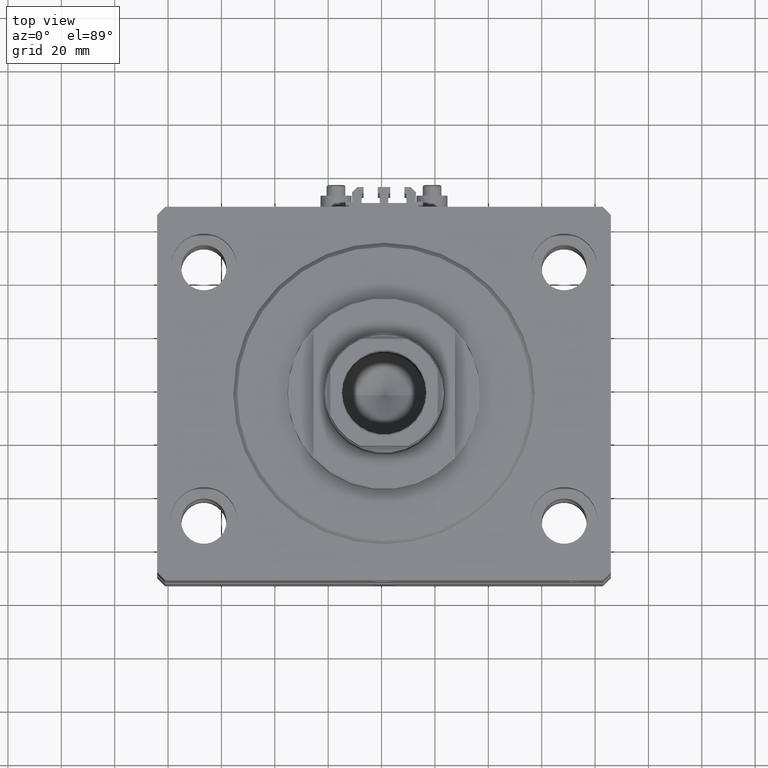
[diagram: clean part render]
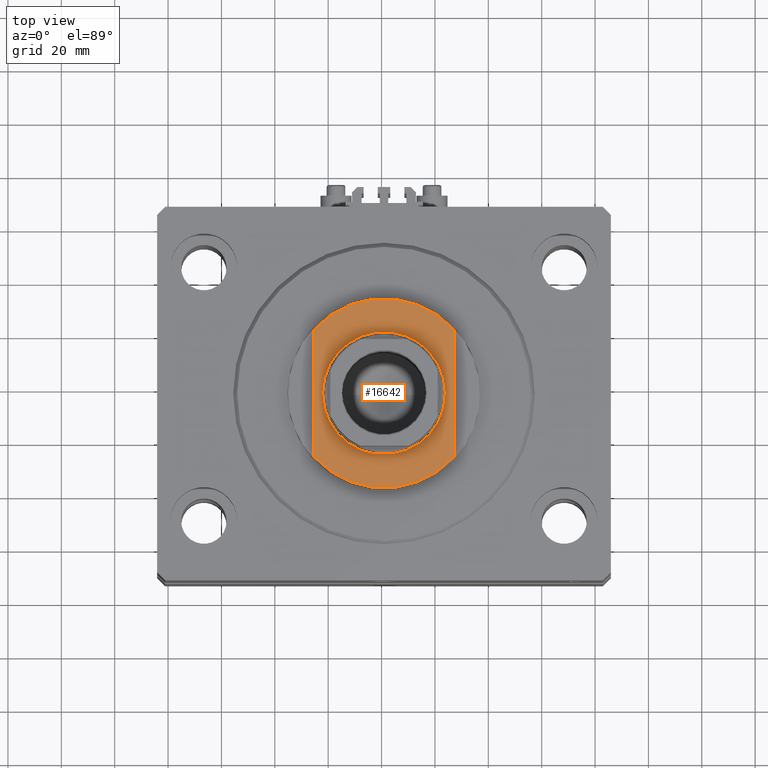
[diagram: same view with one face highlighted and labeled with its STEP entity id]
A machine part, top view. The second image highlights one B-rep face of the part: STEP entity #16642.
In plain terms, the highlighted planar face has unit normal (0, 0, 1).
Its self-contained STEP definition (entity closure, byte-faithful):
#359 = CARTESIAN_POINT ( 'NONE',  ( -26.50000000000000000, 23.62202362203536765, -8.000000000000000000 ) ) ;
#732 = CIRCLE ( 'NONE', #28099, 23.00000000000001776 ) ;
#1338 = VERTEX_POINT ( 'NONE', #359 ) ;
#1461 = DIRECTION ( 'NONE',  ( 0.000000000000000000, -1.000000000000000000, -0.000000000000000000 ) ) ;
#3007 = ORIENTED_EDGE ( 'NONE', *, *, #19865, .T. ) ;
#3184 = VERTEX_POINT ( 'NONE', #47376 ) ;
#3758 = ORIENTED_EDGE ( 'NONE', *, *, #20623, .T. ) ;
#3876 = LINE ( 'NONE', #28906, #15413 ) ;
#3992 = DIRECTION ( 'NONE',  ( -0.000000000000000000, -0.000000000000000000, 1.000000000000000000 ) ) ;
#4578 = VERTEX_POINT ( 'NONE', #7615 ) ;
#5413 = CARTESIAN_POINT ( 'NONE',  ( 0.000000000000000000, 0.000000000000000000, -8.000000000000000000 ) ) ;
#6086 = CIRCLE ( 'NONE', #9970, 35.49999999999996447 ) ;
#7615 = CARTESIAN_POINT ( 'NONE',  ( 26.50000000000000000, -23.62202362203536765, -8.000000000000000000 ) ) ;
#8414 = ORIENTED_EDGE ( 'NONE', *, *, #19635, .F. ) ;
#9970 = AXIS2_PLACEMENT_3D ( 'NONE', #5413, #39186, #30449 ) ;
#12487 = CIRCLE ( 'NONE', #39029, 23.00000000000001776 ) ;
#12947 = CARTESIAN_POINT ( 'NONE',  ( 26.50000000000000000, -36.36963018783666257, -8.000000000000000000 ) ) ;
#15413 = VECTOR ( 'NONE', #24756, 1000.000000000000000 ) ;
#16132 = VECTOR ( 'NONE', #1461, 1000.000000000000000 ) ;
#16278 = ORIENTED_EDGE ( 'NONE', *, *, #17782, .T. ) ;
#16642 = ADVANCED_FACE ( 'NONE', ( #45055, #20771 ), #39135, .T. ) ;
#16890 = AXIS2_PLACEMENT_3D ( 'NONE', #46751, #17100, #31065 ) ;
#17100 = DIRECTION ( 'NONE',  ( 0.000000000000000000, 0.000000000000000000, -1.000000000000000000 ) ) ;
#17782 = EDGE_CURVE ( 'NONE', #41608, #4578, #27632, .T. ) ;
#18200 = ORIENTED_EDGE ( 'NONE', *, *, #47798, .T. ) ;
#19635 = EDGE_CURVE ( 'NONE', #1338, #46529, #3876, .T. ) ;
#19865 = EDGE_CURVE ( 'NONE', #1338, #41608, #38091, .T. ) ;
#19930 = EDGE_LOOP ( 'NONE', ( #44440, #18200 ) ) ;
#20623 = EDGE_CURVE ( 'NONE', #4578, #46529, #6086, .T. ) ;
#20771 = FACE_OUTER_BOUND ( 'NONE', #35078, .T. ) ;
#23566 = DIRECTION ( 'NONE',  ( -1.000000000000000000, 0.000000000000000000, 0.000000000000000000 ) ) ;
#24756 = DIRECTION ( 'NONE',  ( -0.000000000000000000, -1.000000000000000000, -0.000000000000000000 ) ) ;
#25856 = CARTESIAN_POINT ( 'NONE',  ( 0.000000000000000000, 0.000000000000000000, -8.000000000000000000 ) ) ;
#27632 = LINE ( 'NONE', #12947, #16132 ) ;
#27858 = CARTESIAN_POINT ( 'NONE',  ( 26.50000000000000000, 23.62202362203536765, -8.000000000000000000 ) ) ;
#27861 = DIRECTION ( 'NONE',  ( -1.000000000000000000, 0.000000000000000000, 0.000000000000000000 ) ) ;
#28099 = AXIS2_PLACEMENT_3D ( 'NONE', #43616, #42577, #27861 ) ;
#28906 = CARTESIAN_POINT ( 'NONE',  ( -26.50000000000000000, -36.36963018783666257, -8.000000000000000000 ) ) ;
#29274 = DIRECTION ( 'NONE',  ( 0.000000000000000000, 0.000000000000000000, -1.000000000000000000 ) ) ;
#29495 = AXIS2_PLACEMENT_3D ( 'NONE', #25856, #29274, #33425 ) ;
#30233 = CARTESIAN_POINT ( 'NONE',  ( -23.00000000000001776, 0.000000000000000000, -8.000000000000000000 ) ) ;
#30449 = DIRECTION ( 'NONE',  ( -1.000000000000000000, 0.000000000000000000, 0.000000000000000000 ) ) ;
#31065 = DIRECTION ( 'NONE',  ( -1.000000000000000000, 0.000000000000000000, -0.000000000000000000 ) ) ;
#32746 = VERTEX_POINT ( 'NONE', #30233 ) ;
#33425 = DIRECTION ( 'NONE',  ( -1.000000000000000000, 0.000000000000000000, 0.000000000000000000 ) ) ;
#35078 = EDGE_LOOP ( 'NONE', ( #3007, #16278, #3758, #8414 ) ) ;
#37503 = CARTESIAN_POINT ( 'NONE',  ( 0.000000000000000000, 0.000000000000000000, -8.000000000000000000 ) ) ;
#37560 = CARTESIAN_POINT ( 'NONE',  ( -26.50000000000000711, -23.62202362203537476, -8.000000000000000000 ) ) ;
#38091 = CIRCLE ( 'NONE', #29495, 35.49999999999996447 ) ;
#39029 = AXIS2_PLACEMENT_3D ( 'NONE', #37503, #3992, #23566 ) ;
#39135 = PLANE ( 'NONE',  #16890 ) ;
#39186 = DIRECTION ( 'NONE',  ( 0.000000000000000000, 0.000000000000000000, -1.000000000000000000 ) ) ;
#41608 = VERTEX_POINT ( 'NONE', #27858 ) ;
#42577 = DIRECTION ( 'NONE',  ( -0.000000000000000000, -0.000000000000000000, 1.000000000000000000 ) ) ;
#43616 = CARTESIAN_POINT ( 'NONE',  ( 0.000000000000000000, 0.000000000000000000, -8.000000000000000000 ) ) ;
#44440 = ORIENTED_EDGE ( 'NONE', *, *, #47988, .T. ) ;
#45055 = FACE_BOUND ( 'NONE', #19930, .T. ) ;
#46529 = VERTEX_POINT ( 'NONE', #37560 ) ;
#46751 = CARTESIAN_POINT ( 'NONE',  ( 0.000000000000000000, 0.000000000000000000, -8.000000000000000000 ) ) ;
#47376 = CARTESIAN_POINT ( 'NONE',  ( 23.00000000000001776, 2.816687638038914718E-15, -8.000000000000000000 ) ) ;
#47798 = EDGE_CURVE ( 'NONE', #3184, #32746, #12487, .T. ) ;
#47988 = EDGE_CURVE ( 'NONE', #32746, #3184, #732, .T. ) ;